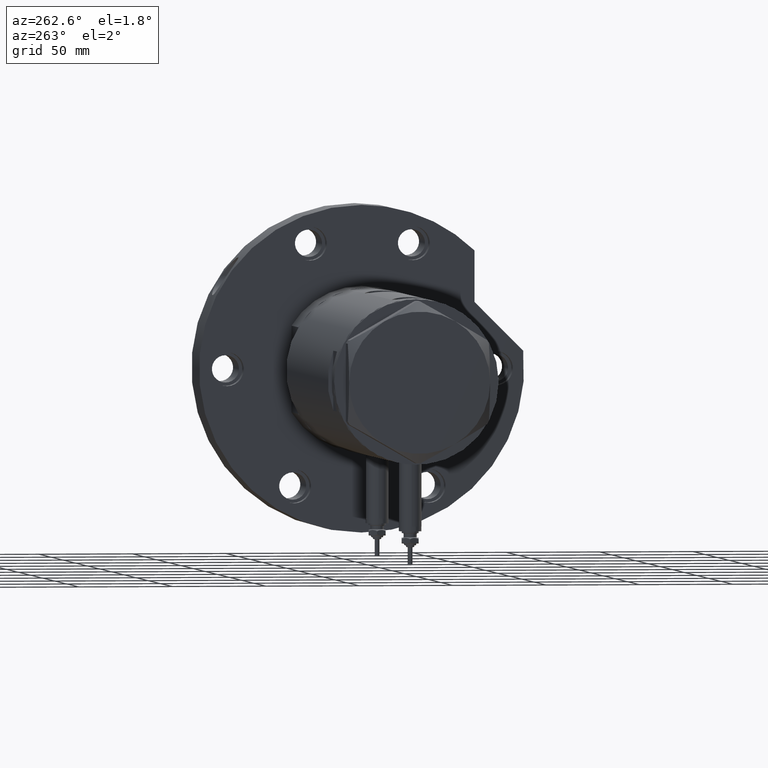
[diagram: clean part render]
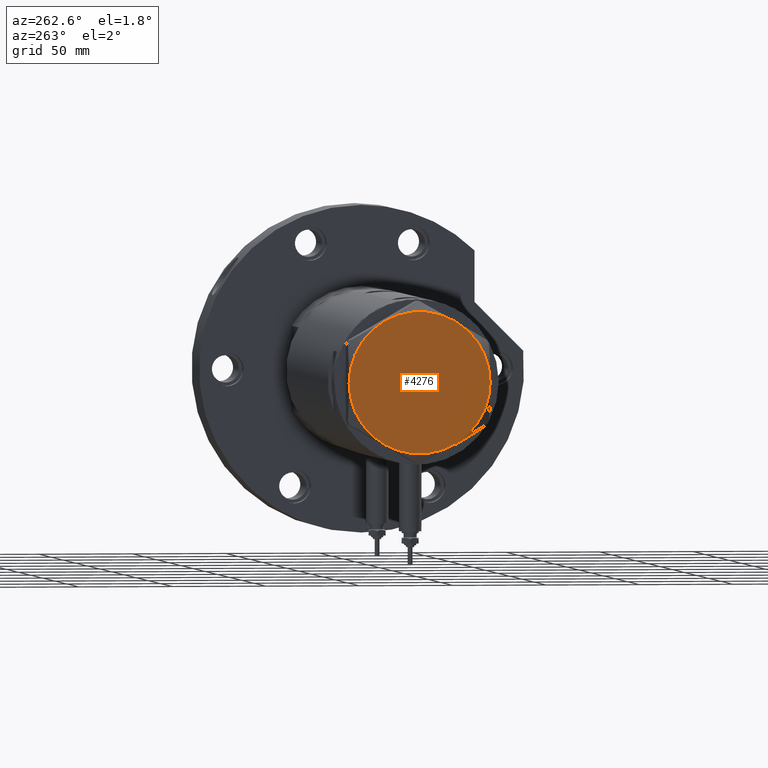
[diagram: same view with one face highlighted and labeled with its STEP entity id]
A machine part, auxiliary view. The second image highlights one B-rep face of the part: STEP entity #4276.
In plain terms, the highlighted planar face has unit normal (-1, -0, 0).
Its self-contained STEP definition (entity closure, byte-faithful):
#58 = AXIS2_PLACEMENT_3D ( 'NONE', #3018, #6546, #1417 ) ;
#380 = DIRECTION ( 'NONE',  ( 1.000000000000000000, 0.000000000000000000, 0.000000000000000000 ) ) ;
#633 = CARTESIAN_POINT ( 'NONE',  ( 0.000000000000000000, 0.000000000000000000, 13.00000000000000000 ) ) ;
#958 = ORIENTED_EDGE ( 'NONE', *, *, #5360, .T. ) ;
#980 = DIRECTION ( 'NONE',  ( 0.000000000000000000, 0.000000000000000000, 1.000000000000000000 ) ) ;
#1023 = CARTESIAN_POINT ( 'NONE',  ( 0.000000000000000000, 0.000000000000000000, 13.00000000000000000 ) ) ;
#1245 = VERTEX_POINT ( 'NONE', #5189 ) ;
#1250 = CARTESIAN_POINT ( 'NONE',  ( 0.000000000000000000, 0.000000000000000000, 13.00000000000000000 ) ) ;
#1279 = AXIS2_PLACEMENT_3D ( 'NONE', #6716, #1480, #7329 ) ;
#1396 = EDGE_CURVE ( 'NONE', #1721, #2640, #4291, .T. ) ;
#1417 = DIRECTION ( 'NONE',  ( 1.000000000000000000, 0.000000000000000000, 0.000000000000000000 ) ) ;
#1480 = DIRECTION ( 'NONE',  ( 0.000000000000000000, 0.000000000000000000, 1.000000000000000000 ) ) ;
#1721 = VERTEX_POINT ( 'NONE', #6619 ) ;
#1804 = DIRECTION ( 'NONE',  ( 1.000000000000000000, 0.000000000000000000, 0.000000000000000000 ) ) ;
#1820 = ORIENTED_EDGE ( 'NONE', *, *, #6213, .T. ) ;
#1854 = DIRECTION ( 'NONE',  ( 0.000000000000000000, 0.000000000000000000, 1.000000000000000000 ) ) ;
#2049 = CIRCLE ( 'NONE', #6694, 37.75000000000000000 ) ;
#2244 = CIRCLE ( 'NONE', #58, 37.75000000000000000 ) ;
#2345 = ORIENTED_EDGE ( 'NONE', *, *, #1396, .T. ) ;
#2346 = DIRECTION ( 'NONE',  ( 0.000000000000000000, 0.000000000000000000, 1.000000000000000000 ) ) ;
#2386 = DIRECTION ( 'NONE',  ( 1.000000000000000000, 0.000000000000000000, 0.000000000000000000 ) ) ;
#2433 = CARTESIAN_POINT ( 'NONE',  ( -37.75000000000000000, -1.201851678989727067E-14, 13.00000000000000000 ) ) ;
#2526 = VERTEX_POINT ( 'NONE', #4486 ) ;
#2640 = VERTEX_POINT ( 'NONE', #5795 ) ;
#2694 = DIRECTION ( 'NONE',  ( 1.000000000000000000, 0.000000000000000000, 0.000000000000000000 ) ) ;
#3018 = CARTESIAN_POINT ( 'NONE',  ( 0.000000000000000000, 0.000000000000000000, 13.00000000000000000 ) ) ;
#3089 = ORIENTED_EDGE ( 'NONE', *, *, #3799, .T. ) ;
#3139 = EDGE_LOOP ( 'NONE', ( #4133, #958, #2345, #3089, #5188, #1820 ) ) ;
#3350 = AXIS2_PLACEMENT_3D ( 'NONE', #633, #7049, #1804 ) ;
#3395 = CIRCLE ( 'NONE', #4375, 37.75000000000000000 ) ;
#3571 = DIRECTION ( 'NONE',  ( 1.000000000000000000, 0.000000000000000000, 0.000000000000000000 ) ) ;
#3799 = EDGE_CURVE ( 'NONE', #2640, #5669, #2244, .T. ) ;
#3961 = DIRECTION ( 'NONE',  ( 0.000000000000000000, 0.000000000000000000, 1.000000000000000000 ) ) ;
#4133 = ORIENTED_EDGE ( 'NONE', *, *, #6913, .T. ) ;
#4276 = ADVANCED_FACE ( 'NONE', ( #6757 ), #4384, .T. ) ;
#4291 = CIRCLE ( 'NONE', #4658, 37.75000000000000000 ) ;
#4375 = AXIS2_PLACEMENT_3D ( 'NONE', #5684, #980, #2694 ) ;
#4384 = PLANE ( 'NONE',  #1279 ) ;
#4486 = CARTESIAN_POINT ( 'NONE',  ( 18.87499999999998579, -32.69245899286256218, 13.00000000000000000 ) ) ;
#4658 = AXIS2_PLACEMENT_3D ( 'NONE', #1250, #1854, #3571 ) ;
#4704 = CIRCLE ( 'NONE', #3350, 37.75000000000000000 ) ;
#5188 = ORIENTED_EDGE ( 'NONE', *, *, #6876, .T. ) ;
#5189 = CARTESIAN_POINT ( 'NONE',  ( 37.75000000000000711, 1.802777518484591547E-14, 13.00000000000000000 ) ) ;
#5302 = VERTEX_POINT ( 'NONE', #5538 ) ;
#5348 = CIRCLE ( 'NONE', #7550, 37.75000000000000000 ) ;
#5360 = EDGE_CURVE ( 'NONE', #1245, #1721, #4704, .T. ) ;
#5538 = CARTESIAN_POINT ( 'NONE',  ( -18.87499999999999645, -32.69245899286255508, 13.00000000000000000 ) ) ;
#5669 = VERTEX_POINT ( 'NONE', #2433 ) ;
#5684 = CARTESIAN_POINT ( 'NONE',  ( 0.000000000000000000, 0.000000000000000000, 13.00000000000000000 ) ) ;
#5795 = CARTESIAN_POINT ( 'NONE',  ( -18.87499999999999645, 32.69245899286256218, 13.00000000000000000 ) ) ;
#6213 = EDGE_CURVE ( 'NONE', #5302, #2526, #5348, .T. ) ;
#6546 = DIRECTION ( 'NONE',  ( 0.000000000000000000, 0.000000000000000000, 1.000000000000000000 ) ) ;
#6619 = CARTESIAN_POINT ( 'NONE',  ( 18.87500000000000000, 32.69245899286255508, 13.00000000000000000 ) ) ;
#6694 = AXIS2_PLACEMENT_3D ( 'NONE', #1023, #3961, #380 ) ;
#6716 = CARTESIAN_POINT ( 'NONE',  ( 0.000000000000000000, 0.000000000000000000, 13.00000000000000000 ) ) ;
#6757 = FACE_OUTER_BOUND ( 'NONE', #3139, .T. ) ;
#6876 = EDGE_CURVE ( 'NONE', #5669, #5302, #2049, .T. ) ;
#6901 = CARTESIAN_POINT ( 'NONE',  ( 0.000000000000000000, 0.000000000000000000, 13.00000000000000000 ) ) ;
#6913 = EDGE_CURVE ( 'NONE', #2526, #1245, #3395, .T. ) ;
#7049 = DIRECTION ( 'NONE',  ( 0.000000000000000000, 0.000000000000000000, 1.000000000000000000 ) ) ;
#7329 = DIRECTION ( 'NONE',  ( 1.000000000000000000, 0.000000000000000000, -0.000000000000000000 ) ) ;
#7550 = AXIS2_PLACEMENT_3D ( 'NONE', #6901, #2346, #2386 ) ;